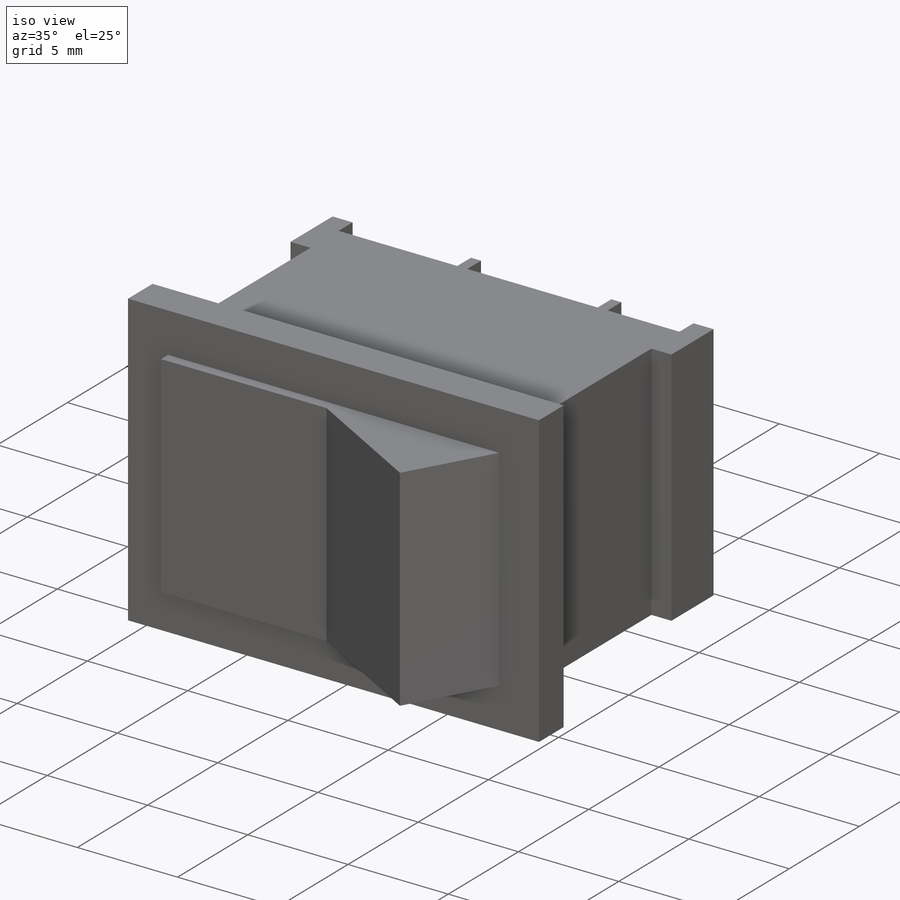
[diagram: iso view]
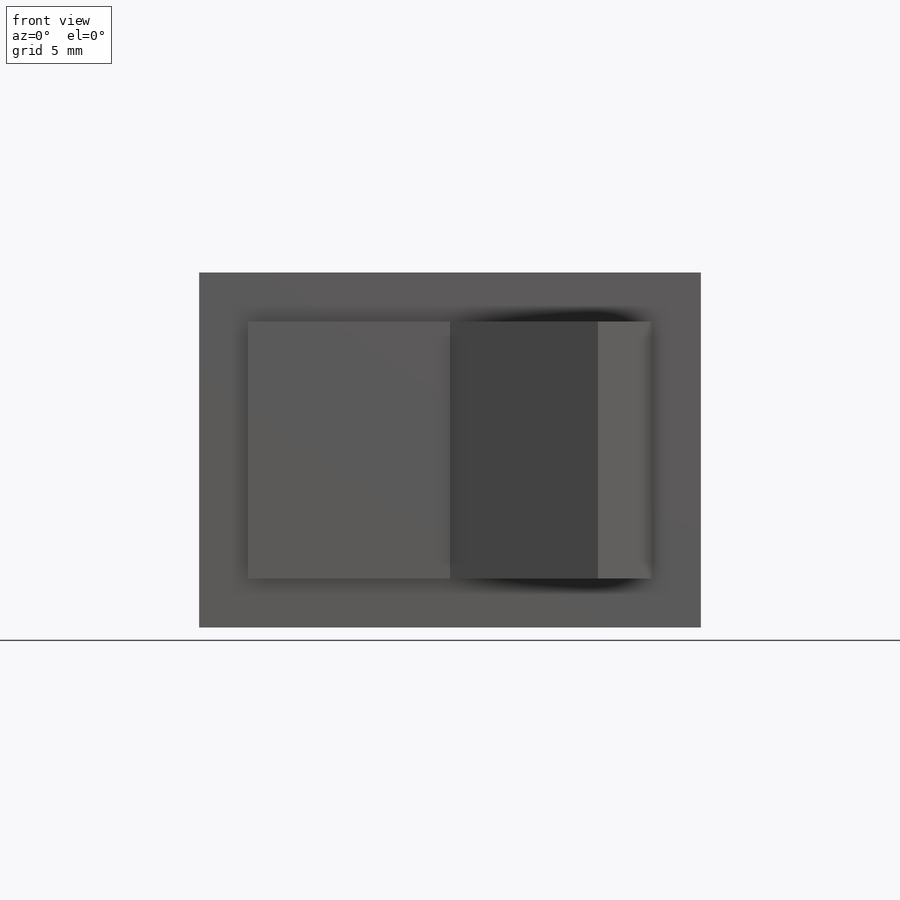
[diagram: front view]
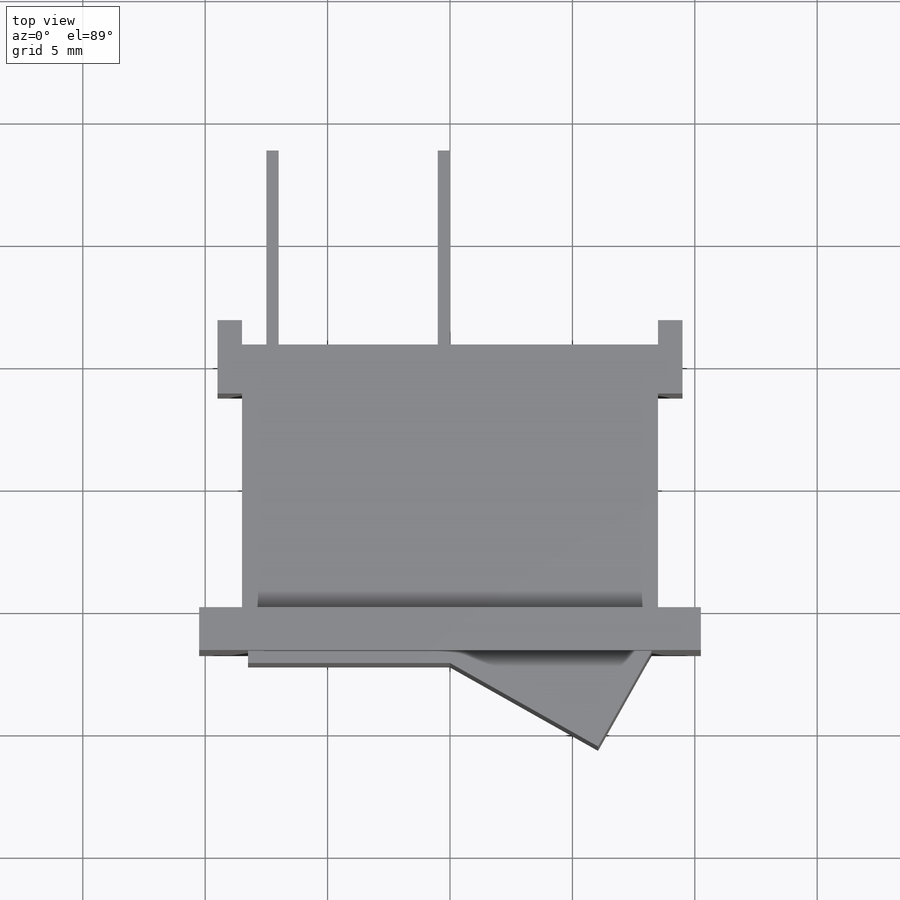
[diagram: top view]
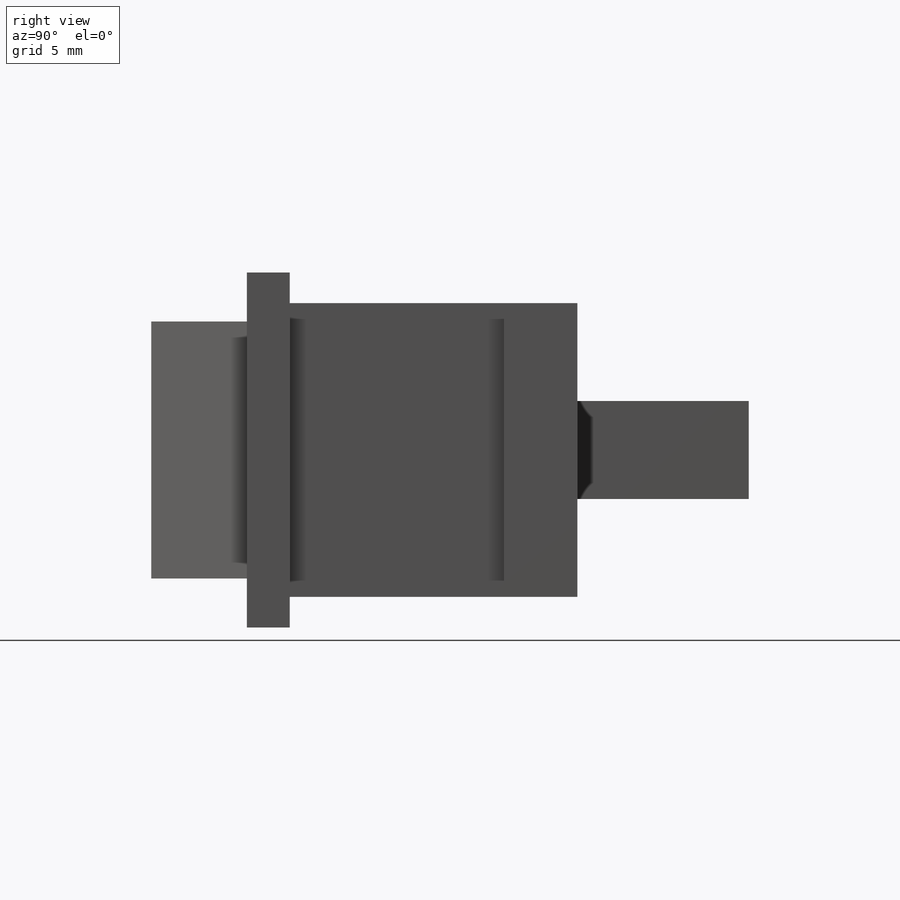
[diagram: right view]
SOLIDWORKS PART (.sldprt)
format: sldprt  version: not decoded by parser v0  size: 229,888 bytes
history: native  units: mm
features: sketch x8, extrude x7, plane x3, material x1 (+8 scaffold rows collapsed)
feature tree (27):
  scaffold x8  (default folders/planes/origin — collapsed)
  material  "Materiale <non specificato>"
  plane  "Piano frontale"
  plane  "Piano superiore"
  plane  "Piano destro"
  sketch  "Schizzo1"  dims[D1=20.5mm D2=14.5mm]
  extrude  "Estrusione-Estrusione1"  Depth=1.75mm
  sketch  "Schizzo2"  dims[D1=12.0mm D2=17.0mm]
  extrude  "Estrusione-Estrusione2"  Depth=10.75mm
  sketch  "Schizzo3"  dims[c1.D1=2.0mm c1.D2=2.0mm c2.D1=2.0mm c2.D2=1.0mm]
  extrude  "Estrusione-Estrusione3"  Depth=1mm
  sketch  "Schizzo4"  dims[D1=2.0mm D2=1.0mm]
  extrude  "Estrusione-Estrusione4"  Depth=1mm
  sketch  "Schizzo6"  dims[D1=2.0mm D2=2.0mm D3=2.0mm D4=0.0mm]
  extrude  "Estrusione-Estrusione5"  Depth=0.5mm
  sketch  "Schizzo8"  dims[D1=8.25mm]
  extrude  "Estrusione-Estrusione6"  [1 undecoded]
  sketch  "Schizzo9"  dims[D1=2.0mm D2=0.5mm D3=4.0mm D4=6.5mm D5=0.5mm D6=4.0mm]
  extrude  "Estrusione-Estrusione7"  Depth=8mm
  sketch  "Schizzo10"
decode coverage: 13 of 15 modeling features carry decoded parameters
note: 1 parameter value undecoded
note: suppression state not decoded; provenance and decode notes live in map.json
